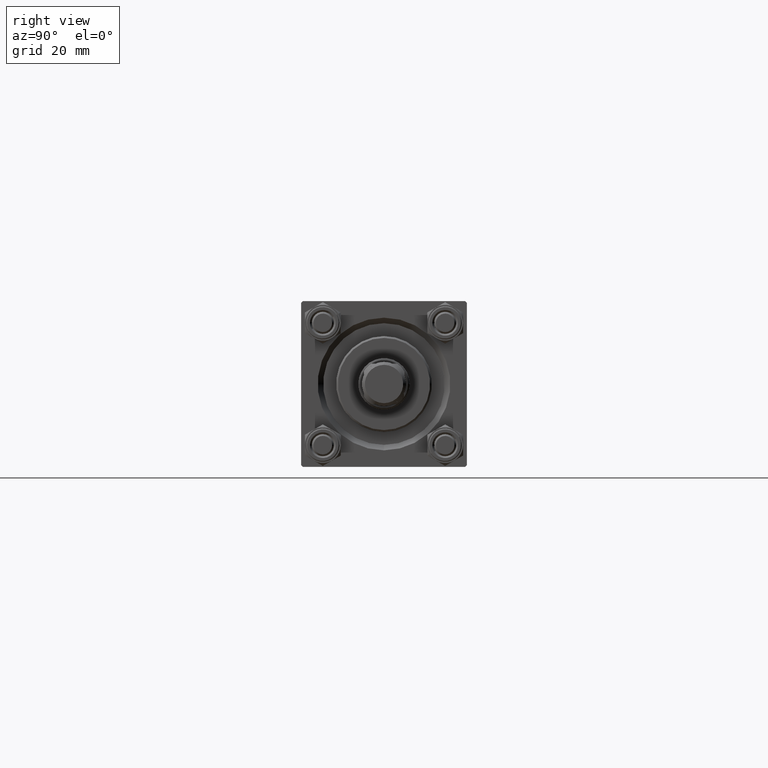
[diagram: clean part render]
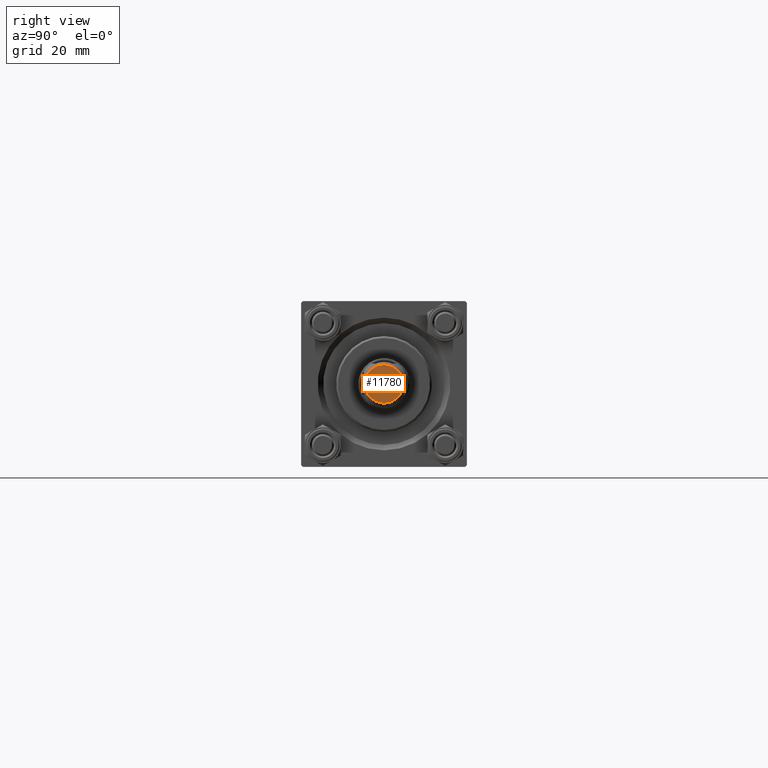
[diagram: same view with one face highlighted and labeled with its STEP entity id]
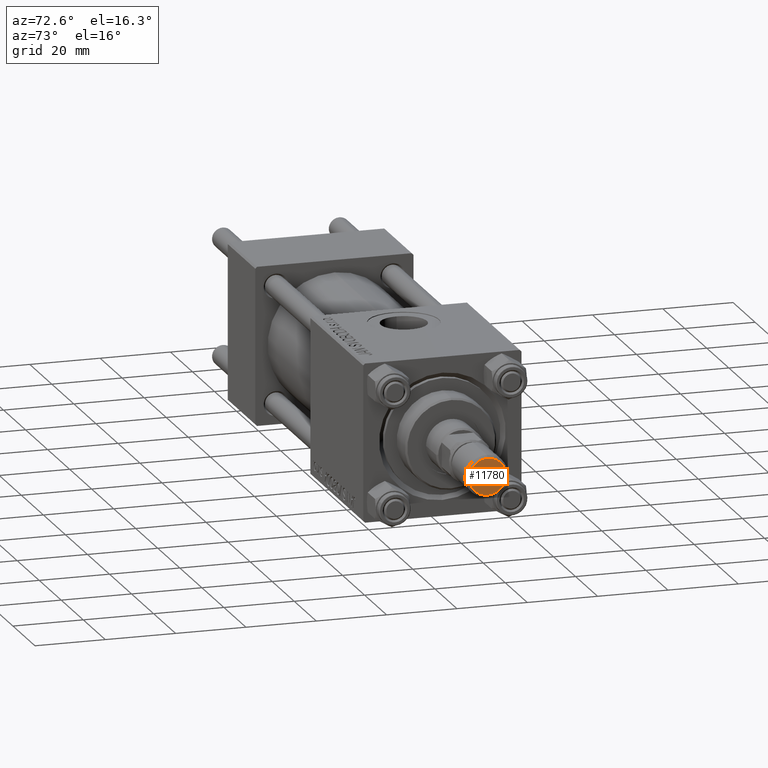
[diagram: same view with one face highlighted and labeled with its STEP entity id]
A machine part, right view. The second image highlights one B-rep face of the part: STEP entity #11780.
A second angle (auxiliary view) of the same face is appended — the face is thin or edge-on in the first view.
In plain terms, the highlighted planar face has unit normal (-1, 0, 0).
Its self-contained STEP definition (entity closure, byte-faithful):
#5790 = CARTESIAN_POINT ( 'NONE',  ( 0.000000000000000000, 0.000000000000000000, 0.000000000000000000 ) ) ;
#10636 = CARTESIAN_POINT ( 'NONE',  ( 0.000000000000000000, 0.000000000000000000, 0.000000000000000000 ) ) ;
#11780 = ADVANCED_FACE ( 'NONE', ( #21051 ), #29166, .F. ) ;
#12434 = ORIENTED_EDGE ( 'NONE', *, *, #42934, .T. ) ;
#15411 = AXIS2_PLACEMENT_3D ( 'NONE', #10636, #26385, #29950 ) ;
#16870 = CIRCLE ( 'NONE', #39663, 5.199999999999992184 ) ;
#19480 = CIRCLE ( 'NONE', #15411, 5.199999999999992184 ) ;
#21051 = FACE_OUTER_BOUND ( 'NONE', #45910, .T. ) ;
#21396 = CARTESIAN_POINT ( 'NONE',  ( 0.000000000000000000, 0.000000000000000000, 0.000000000000000000 ) ) ;
#22097 = ORIENTED_EDGE ( 'NONE', *, *, #47618, .T. ) ;
#26385 = DIRECTION ( 'NONE',  ( -0.000000000000000000, -0.000000000000000000, -1.000000000000000000 ) ) ;
#27617 = AXIS2_PLACEMENT_3D ( 'NONE', #5790, #32736, #48278 ) ;
#29166 = PLANE ( 'NONE',  #27617 ) ;
#29950 = DIRECTION ( 'NONE',  ( 1.000000000000000000, 0.000000000000000000, 0.000000000000000000 ) ) ;
#32736 = DIRECTION ( 'NONE',  ( 0.000000000000000000, 0.000000000000000000, 1.000000000000000000 ) ) ;
#37652 = DIRECTION ( 'NONE',  ( 1.000000000000000000, 0.000000000000000000, 0.000000000000000000 ) ) ;
#38543 = CARTESIAN_POINT ( 'NONE',  ( 5.199999999999992184, 0.000000000000000000, 0.000000000000000000 ) ) ;
#39356 = VERTEX_POINT ( 'NONE', #38543 ) ;
#39663 = AXIS2_PLACEMENT_3D ( 'NONE', #21396, #40987, #37652 ) ;
#40987 = DIRECTION ( 'NONE',  ( -0.000000000000000000, -0.000000000000000000, -1.000000000000000000 ) ) ;
#42140 = CARTESIAN_POINT ( 'NONE',  ( -5.199999999999992184, 6.858022075225173621E-16, 0.000000000000000000 ) ) ;
#42934 = EDGE_CURVE ( 'NONE', #39356, #44518, #16870, .T. ) ;
#44518 = VERTEX_POINT ( 'NONE', #42140 ) ;
#45910 = EDGE_LOOP ( 'NONE', ( #12434, #22097 ) ) ;
#47618 = EDGE_CURVE ( 'NONE', #44518, #39356, #19480, .T. ) ;
#48278 = DIRECTION ( 'NONE',  ( 1.000000000000000000, 0.000000000000000000, -0.000000000000000000 ) ) ;